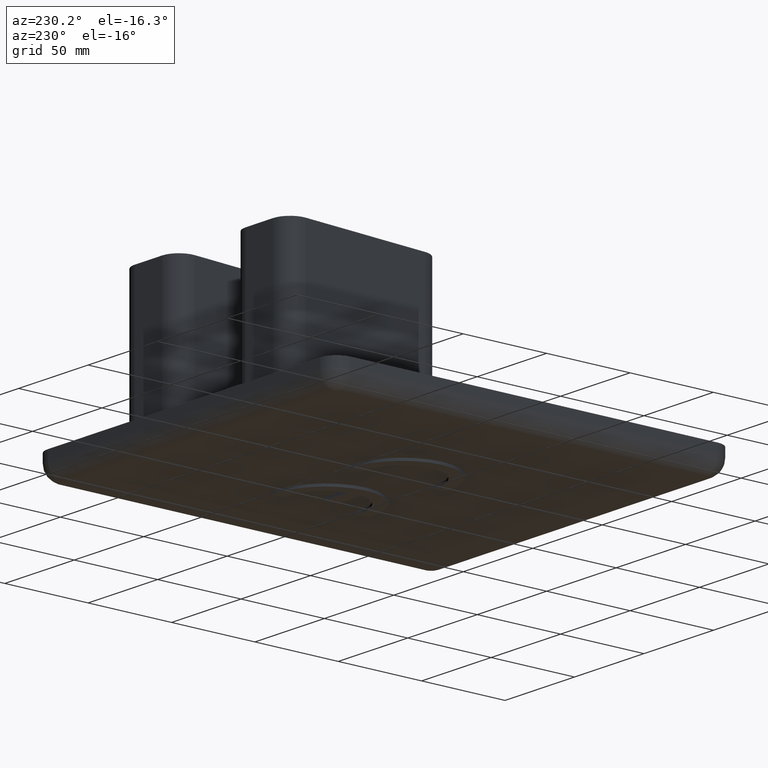
[diagram: clean part render]
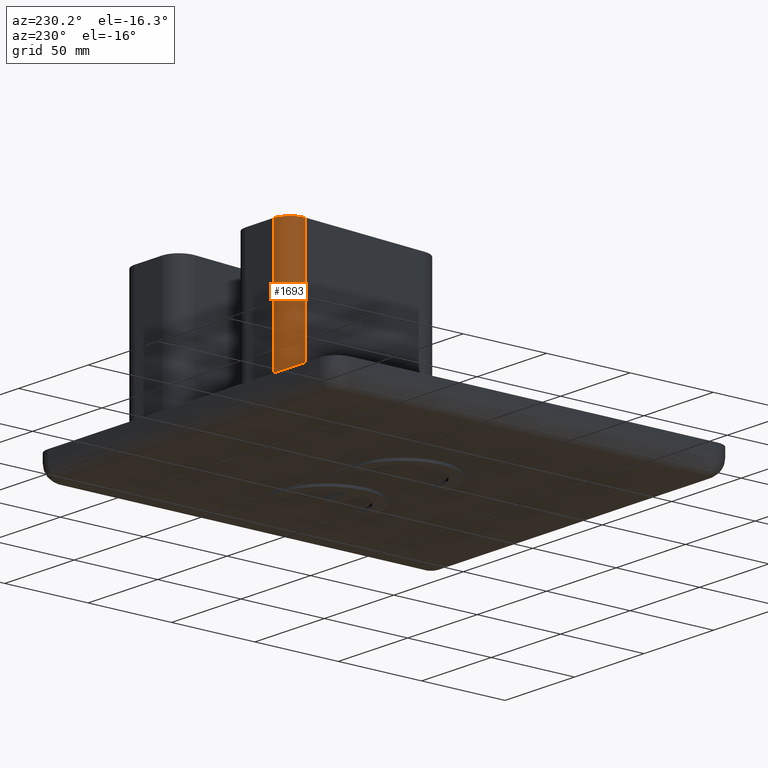
[diagram: same view with one face highlighted and labeled with its STEP entity id]
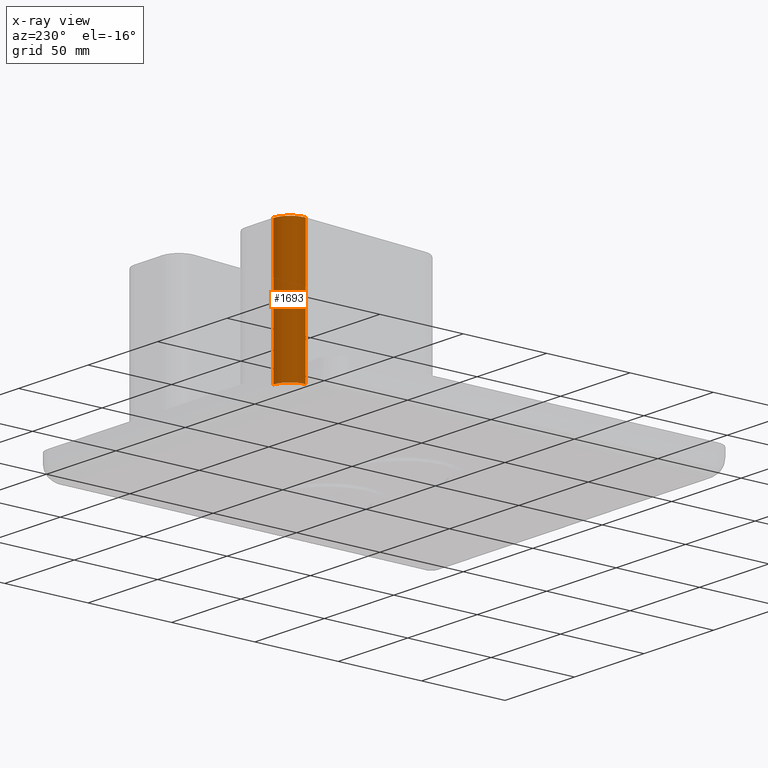
[diagram: x-ray of the same camera — body ghosted, the highlighted face saturated]
A machine part, auxiliary view. The second image highlights one B-rep face of the part: STEP entity #1693.
The next image is the same camera in x-ray: the body ghosted, the highlighted face saturated — about 0% of this face is hidden behind the body in this view.
In plain terms, the highlighted cylindrical surface (edge-blend (fillet) strip) has radius 10 mm, axis along (0, 0, 1).
Its self-contained STEP definition (entity closure, byte-faithful):
#862=CARTESIAN_POINT('',(-173.30096754634269,216.64077403626658,15.000000000000002));
#863=VERTEX_POINT('',#862);
#907=CARTESIAN_POINT('',(-183.2489173040957,205.621806118606,15.000000000000002));
#908=VERTEX_POINT('',#907);
#915=CARTESIAN_POINT('',(-173.30096754634269,206.64077403626663,15.000000000000002));
#916=DIRECTION('',(0.0,0.0,-1.0));
#917=DIRECTION('',(0.0,-1.0,0.0));
#918=AXIS2_PLACEMENT_3D('',#915,#916,#917);
#919=CIRCLE('',#918,10.0);
#920=EDGE_CURVE('',#908,#863,#919,.T.);
#1595=CARTESIAN_POINT('',(-173.30096754634269,216.64077403626658,95.000000000000028));
#1596=VERTEX_POINT('',#1595);
#1605=CARTESIAN_POINT('',(-183.2489173040957,205.621806118606,95.000000000000028));
#1606=VERTEX_POINT('',#1605);
#1607=CARTESIAN_POINT('',(-173.30096754634269,206.64077403626663,95.000000000000028));
#1608=DIRECTION('',(0.0,0.0,-1.0));
#1609=DIRECTION('',(0.0,-1.0,0.0));
#1610=AXIS2_PLACEMENT_3D('',#1607,#1608,#1609);
#1611=CIRCLE('',#1610,10.0);
#1612=EDGE_CURVE('',#1606,#1596,#1611,.T.);
#1656=CARTESIAN_POINT('',(-173.30096754634269,216.64077403626658,15.000000000000002));
#1657=DIRECTION('',(0.0,0.0,1.0));
#1658=VECTOR('',#1657,80.000000000000028);
#1659=LINE('',#1656,#1658);
#1660=EDGE_CURVE('',#863,#1596,#1659,.T.);
#1670=CARTESIAN_POINT('',(-183.2489173040957,205.621806118606,15.000000000000002));
#1671=DIRECTION('',(0.0,0.0,1.0));
#1672=VECTOR('',#1671,80.000000000000028);
#1673=LINE('',#1670,#1672);
#1674=EDGE_CURVE('',#908,#1606,#1673,.T.);
#1682=CARTESIAN_POINT('',(-173.30096754634269,206.64077403626663,15.000000000000002));
#1683=DIRECTION('',(0.0,0.0,1.0));
#1684=DIRECTION('',(0.0,-1.0,0.0));
#1685=AXIS2_PLACEMENT_3D('',#1682,#1683,#1684);
#1686=CYLINDRICAL_SURFACE('',#1685,10.0);
#1687=ORIENTED_EDGE('',*,*,#1660,.F.);
#1688=ORIENTED_EDGE('',*,*,#920,.F.);
#1689=ORIENTED_EDGE('',*,*,#1674,.T.);
#1690=ORIENTED_EDGE('',*,*,#1612,.T.);
#1691=EDGE_LOOP('',(#1687,#1688,#1689,#1690));
#1692=FACE_OUTER_BOUND('',#1691,.T.);
#1693=ADVANCED_FACE('',(#1692),#1686,.T.);